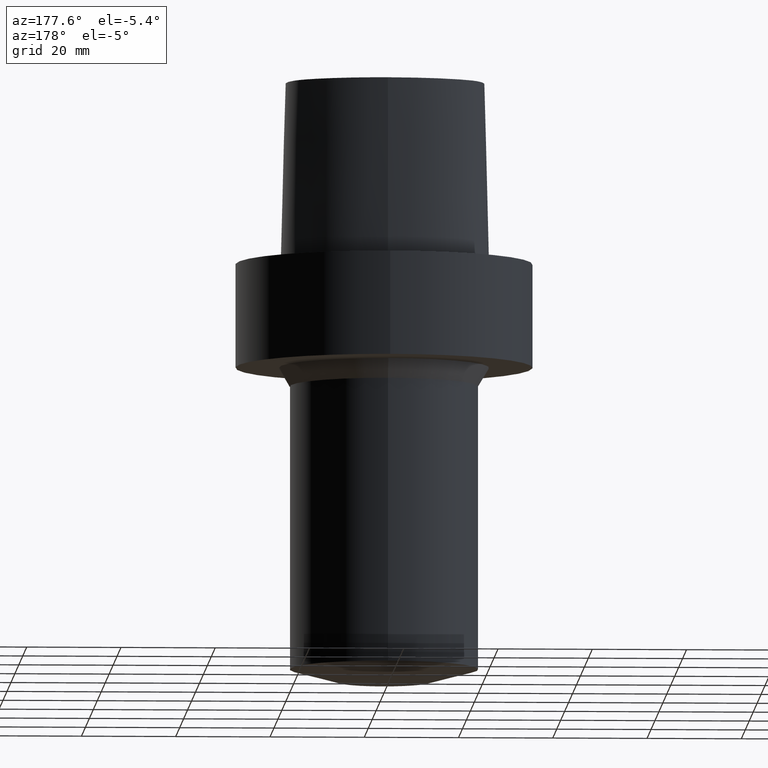
[diagram: clean part render]
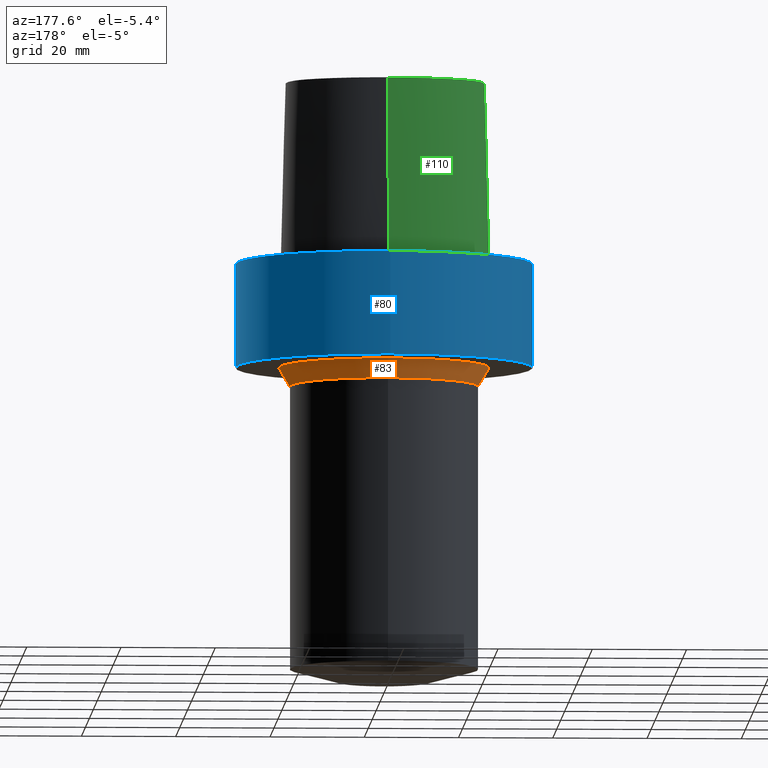
[diagram: same view with three faces highlighted in distinct colors, each labeled with its STEP entity id]
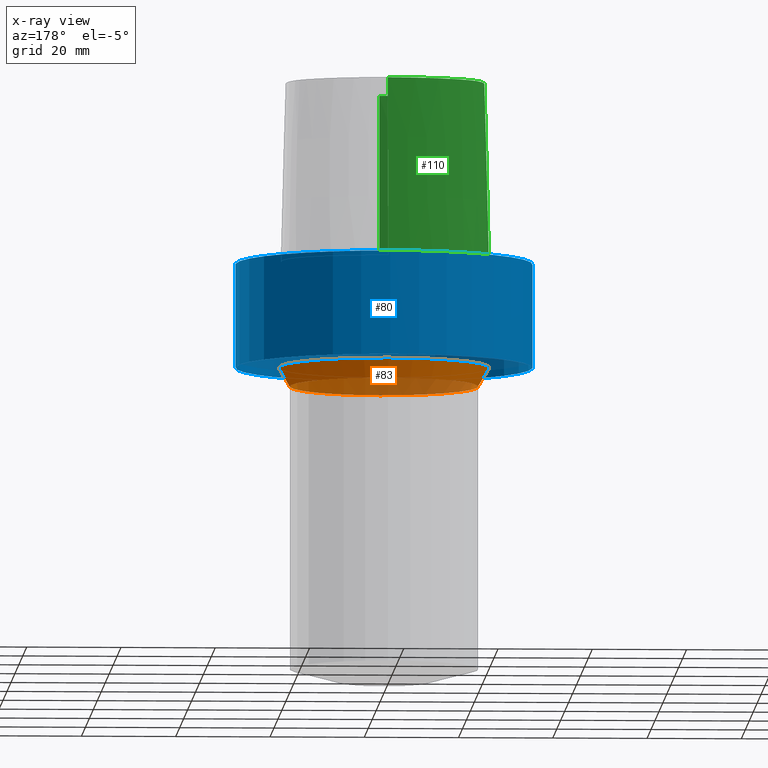
[diagram: x-ray of the same camera — body ghosted, the three highlighted faces saturated]
A machine part, auxiliary view with three faces highlighted in distinct colors.
The next image is the same camera in x-ray (body ghosted, the three faces saturated) — at least one of them is partly hidden behind the body in this view.
Their STEP definitions:

[orange] entity #83 — the highlighted conical surface has half-angle 30 deg.
#83=ADVANCED_FACE('Unnamed[1]',(#179,#180),#181,.T.);
#96=EDGE_CURVE('Unnamed[1]',#195,#195,#196,.T.);
#112=EDGE_CURVE('Unnamed[1]',#219,#219,#220,.T.);
#179=FACE_BOUND('',#375,.T.);
#180=FACE_BOUND('',#376,.T.);
#181=CONICAL_SURFACE('',#377,21.1547005383783,0.523598775598284);
#195=VERTEX_POINT('',#445);
#196=CIRCLE('',#446,22.3094010767605);
#219=VERTEX_POINT('',#546);
#220=CIRCLE('',#547,19.9999999999962);
#375=EDGE_LOOP('',(#592));
#376=EDGE_LOOP('',(#593));
#377=AXIS2_PLACEMENT_3D('',#594,#595,#596);
#445=CARTESIAN_POINT('',(1.34711147906209E-015,22.3094010767605,-22.0));
#446=AXIS2_PLACEMENT_3D('',#607,#608,#609);
#546=CARTESIAN_POINT('',(1.59204083889218E-015,19.9999999999962,-26.0000000000101));
#547=AXIS2_PLACEMENT_3D('',#637,#638,#639);
#592=ORIENTED_EDGE('',*,*,#112,.F.);
#593=ORIENTED_EDGE('',*,*,#96,.T.);
#594=CARTESIAN_POINT('',(1.46957615897713E-015,2.93915231795427E-015,-24.0000000000051));
#595=DIRECTION('',(-6.12323399573677E-017,-1.22464679914735E-016,1.0));
#596=DIRECTION('',(-1.23259516440783E-032,1.0,1.22464679914735E-016));
#607=CARTESIAN_POINT('',(1.34711147906209E-015,2.69422295812418E-015,-22.0));
#608=DIRECTION('',(6.12323399573677E-017,1.22464679914735E-016,-1.0));
#609=DIRECTION('',(-1.23259516440783E-032,1.0,1.22464679914735E-016));
#637=CARTESIAN_POINT('',(1.59204083889218E-015,3.18408167778436E-015,-26.0000000000101));
#638=DIRECTION('',(6.12323399573677E-017,1.22464679914735E-016,-1.0));
#639=DIRECTION('',(-1.23259516440783E-032,1.0,1.22464679914735E-016));

[blue] entity #80 — the highlighted cylindrical surface (bore or boss wall) has radius 31.5 mm, axis along (0, 0, -1).
#69=EDGE_CURVE('Unnamed[1]',#158,#158,#159,.T.);
#75=EDGE_CURVE('Unnamed[1]',#167,#167,#168,.T.);
#80=ADVANCED_FACE('Unnamed[1]',(#174,#175),#176,.T.);
#158=VERTEX_POINT('',#346);
#159=CIRCLE('',#347,31.5);
#167=VERTEX_POINT('',#360);
#168=CIRCLE('',#361,31.5);
#174=FACE_BOUND('',#369,.T.);
#175=FACE_BOUND('',#370,.T.);
#176=CYLINDRICAL_SURFACE('',#371,31.5);
#346=CARTESIAN_POINT('',(-3.88267476788467E-031,31.5,3.85763741731416E-015));
#347=AXIS2_PLACEMENT_3D('',#574,#575,#576);
#360=CARTESIAN_POINT('',(1.34711147906209E-015,31.5,-22.0));
#361=AXIS2_PLACEMENT_3D('',#579,#580,#581);
#369=EDGE_LOOP('',(#586));
#370=EDGE_LOOP('',(#587));
#371=AXIS2_PLACEMENT_3D('',#588,#589,#590);
#574=CARTESIAN_POINT('',(0.0,0.0,0.0));
#575=DIRECTION('',(6.12323399573677E-017,1.22464679914735E-016,-1.0));
#576=DIRECTION('',(-1.23259516440783E-032,1.0,1.22464679914735E-016));
#579=CARTESIAN_POINT('',(1.34711147906209E-015,2.69422295812418E-015,-22.0));
#580=DIRECTION('',(6.12323399573677E-017,1.22464679914735E-016,-1.0));
#581=DIRECTION('',(-1.23259516440783E-032,1.0,1.22464679914735E-016));
#586=ORIENTED_EDGE('',*,*,#75,.F.);
#587=ORIENTED_EDGE('',*,*,#69,.T.);
#588=CARTESIAN_POINT('',(6.73555739531044E-016,1.34711147906209E-015,-11.0));
#589=DIRECTION('',(6.12323399573677E-017,1.22464679914735E-016,-1.0));
#590=DIRECTION('',(-1.23259516440783E-032,1.0,1.22464679914735E-016));

[green] entity #110 — the highlighted face is a freeform B-spline surface patch.
#50=EDGE_CURVE('Unnamed[1]',#130,#131,#132,.T.);
#73=EDGE_CURVE('Unnamed[1]',#150,#164,#165,.T.);
#87=EDGE_CURVE('Unnamed[1]',#131,#164,#185,.T.);
#89=EDGE_CURVE('Unnamed[1]',#150,#130,#187,.T.);
#110=ADVANCED_FACE('Unnamed[1]',(#216),#217,.T.);
#130=VERTEX_POINT('',#229);
#131=VERTEX_POINT('',#230);
#132=LINE('',#231,#232);
#150=VERTEX_POINT('',#321);
#164=VERTEX_POINT('',#355);
#165=LINE('',#356,#357);
#185=B_SPLINE_CURVE_WITH_KNOTS('',3,(#399,#400,#401,#402,#403,#404,#405,#406,#407,#408,#409,#410,#411,#412,#413,#414,#415,#416),.UNSPECIFIED.,.F.,.F.,(4,1,1,1,1,1,1,1,1,2,1,1,1,1,4),(-6.6151339308743,-6.20168806019465,-5.78824218951501,-5.37479631883537,-4.96135044815572,-4.13445870679644,-3.30756696543715,-2.89412109475751,-2.48067522407786,-2.06722935339822,-1.65378348271857,-1.24033761203893,-0.826891741359287,-0.413445870679644,0.0),.UNSPECIFIED.);
#187=B_SPLINE_CURVE_WITH_KNOTS('',3,(#419,#420,#421,#422,#423,#424,#425,#426,#427,#428,#429,#430,#431,#432,#433,#434),.UNSPECIFIED.,.F.,.F.,(4,1,1,1,1,1,1,1,1,1,1,1,1,4),(0.0,0.447924670568964,0.9388024242536,1.50591409090711,2.07314340012323,2.72424957442464,3.2253501842849,3.80982102049476,4.34867996267067,4.85900173381144,5.37972031856977,6.03459825488646,6.61113557741484,6.61513393087395),.UNSPECIFIED.);
#216=FACE_OUTER_BOUND('',#471,.T.);
#217=B_SPLINE_SURFACE_WITH_KNOTS('',3,3,((#472,#473,#474,#475),(#476,#477,#478,#479),(#480,#481,#482,#483),(#484,#485,#486,#487),(#488,#489,#490,#491),(#492,#493,#494,#495),(#496,#497,#498,#499),(#500,#501,#502,#503),(#504,#505,#506,#507),(#508,#509,#510,#511),(#512,#513,#514,#515),(#516,#517,#518,#519),(#520,#521,#522,#523),(#524,#525,#526,#527),(#528,#529,#530,#531),(#532,#533,#534,#535),(#536,#537,#538,#539),(#540,#541,#542,#543)),.UNSPECIFIED.,.F.,.F.,.F.,(4,1,1,1,1,1,1,1,1,2,1,1,1,1,4),(4,4),(-6.6151339308743,-6.20168806019465,-5.78824218951501,-5.37479631883537,-4.96135044815572,-4.13445870679644,-3.30756696543715,-2.89412109475751,-2.48067522407786,-2.06722935339822,-1.65378348271857,-1.24033761203893,-0.826891741359287,-0.413445870679644,0.0),(-3.8,0.0),.UNSPECIFIED.);
#229=CARTESIAN_POINT('',(0.038736923393866,-22.5191997536361,38.0));
#230=CARTESIAN_POINT('',(0.04359356758149,-23.4691235068931,7.78075697532443E-032));
#231=CARTESIAN_POINT('',(0.038736923393866,-22.5191997536361,38.0));
#232=VECTOR('',#549,38.0118715498723);
#321=CARTESIAN_POINT('',(-0.001218547003662,19.7276821925089,38.0));
#355=CARTESIAN_POINT('',(-0.045171994691285,20.6766009553285,1.6755590516169E-031));
#356=CARTESIAN_POINT('',(-0.001218547003662,19.7276821925089,38.0));
#357=VECTOR('',#578,38.0118715498723);
#399=CARTESIAN_POINT('',(0.04359356758149,-23.4691235068931,7.78075697532443E-032));
#400=CARTESIAN_POINT('',(-1.4714994713963,-23.4767895315797,2.46519032881566E-032));
#401=CARTESIAN_POINT('',(-4.43923476371401,-22.821149804767,-4.93038065763132E-032));
#402=CARTESIAN_POINT('',(-8.35043230079961,-20.8000751253325,-9.86076131526265E-032));
#403=CARTESIAN_POINT('',(-11.744900222602,-18.1556117874078,-1.97215226305253E-031));
#404=CARTESIAN_POINT('',(-15.6989602501314,-14.0406306929147,-1.97215226305253E-031));
#405=CARTESIAN_POINT('',(-19.5352875070682,-8.00624990770787,1.97215226305253E-031));
#406=CARTESIAN_POINT('',(-21.7205626190491,-1.16081708945282,0.0));
#407=CARTESIAN_POINT('',(-22.2486616783342,4.54965558738736,0.0));
#408=CARTESIAN_POINT('',(-21.6646421256468,9.00229539124618,0.0));
#409=CARTESIAN_POINT('',(-20.3945635471922,11.7780544971003,0.0));
#410=CARTESIAN_POINT('',(-18.5925528034471,14.1980602922581,0.0));
#411=CARTESIAN_POINT('',(-16.3226584122258,16.1777748720707,0.0));
#412=CARTESIAN_POINT('',(-12.5076407874579,18.2524201541303,9.86076131526265E-032));
#413=CARTESIAN_POINT('',(-8.46776192107786,19.679114377952,9.86076131526265E-032));
#414=CARTESIAN_POINT('',(-4.23043497193604,20.487781597334,1.97215226305253E-031));
#415=CARTESIAN_POINT('',(-1.42313094248379,20.6127745766442,1.10933564796705E-031));
#416=CARTESIAN_POINT('',(-0.045171994691285,20.6766009553285,1.6755590516169E-031));
#419=CARTESIAN_POINT('',(-0.001218547003662,19.7276821925089,38.0));
#420=CARTESIAN_POINT('',(-1.49408492138443,19.6585333605309,38.0));
#421=CARTESIAN_POINT('',(-4.62297391420352,19.513604770166,38.0));
#422=CARTESIAN_POINT('',(-9.56160616752212,18.4291575730197,38.0));
#423=CARTESIAN_POINT('',(-14.5427684976927,16.2697452580488,38.0));
#424=CARTESIAN_POINT('',(-19.4315563551602,12.5302108980807,38.0));
#425=CARTESIAN_POINT('',(-21.306358833612,6.76352894547076,38.0));
#426=CARTESIAN_POINT('',(-21.0724946936277,0.957075236984038,38.0));
#427=CARTESIAN_POINT('',(-19.7876470880144,-4.34628503581652,38.0));
#428=CARTESIAN_POINT('',(-17.5396999600095,-9.33314444653089,38.0));
#429=CARTESIAN_POINT('',(-14.645447733857,-13.7185760345629,38.0));
#430=CARTESIAN_POINT('',(-10.7996726536643,-17.856257282137,38.0));
#431=CARTESIAN_POINT('',(-6.00479510196376,-21.2687382067675,38.0));
#432=CARTESIAN_POINT('',(-1.90747171908525,-22.5250621415864,38.0));
#433=CARTESIAN_POINT('',(0.025424107066464,-22.5192678176378,38.0));
#434=CARTESIAN_POINT('',(0.038736923394311,-22.519199753636,38.0));
#471=EDGE_LOOP('',(#633,#634,#635,#636));
#472=CARTESIAN_POINT('',(0.038736923393866,-22.5191997536361,38.0));
#473=CARTESIAN_POINT('',(0.04035580478973,-22.8358410047159,25.3333333333066));
#474=CARTESIAN_POINT('',(0.041974686185626,-23.1524822558133,12.6666666666934));
#475=CARTESIAN_POINT('',(0.04359356758149,-23.4691235068931,7.78075697532443E-032));
#476=CARTESIAN_POINT('',(-1.33786123484754,-22.5261650259856,38.0));
#477=CARTESIAN_POINT('',(-1.38240731367927,-22.8430399310626,25.3333333333066));
#478=CARTESIAN_POINT('',(-1.42695339249092,-23.1599147815484,12.6666666666934));
#479=CARTESIAN_POINT('',(-1.4714994713963,-23.4767895315797,2.46519032881566E-032));
#480=CARTESIAN_POINT('',(-4.08909358431842,-21.9268839879558,38.0));
#481=CARTESIAN_POINT('',(-4.20580731135515,-22.2249725500078,25.3333333333066));
#482=CARTESIAN_POINT('',(-4.32252104640446,-22.5230611651922,12.6666666666934));
#483=CARTESIAN_POINT('',(-4.43923476371401,-22.821149804767,-4.93038065763132E-032));
#484=CARTESIAN_POINT('',(-7.8333083619947,-19.9973514861616,38.0));
#485=CARTESIAN_POINT('',(-8.00568301809614,-20.2649260859405,25.3333333333066));
#486=CARTESIAN_POINT('',(-8.1780576640789,-20.532500564315,12.6666666666934));
#487=CARTESIAN_POINT('',(-8.35043230079961,-20.8000751253325,-9.86076131526265E-032));
#488=CARTESIAN_POINT('',(-11.1035071147626,-17.450554957873,38.0));
#489=CARTESIAN_POINT('',(-11.3173048160562,-17.6855739222454,25.3333333333066));
#490=CARTESIAN_POINT('',(-11.5311025116181,-17.9205928617968,12.6666666666934));
#491=CARTESIAN_POINT('',(-11.744900222602,-18.1556117874078,-1.97215226305253E-031));
#492=CARTESIAN_POINT('',(-14.9379535189057,-13.461132049697,38.0));
#493=CARTESIAN_POINT('',(-15.191622410671,-13.6542981711372,25.3333333333066));
#494=CARTESIAN_POINT('',(-15.4452913389853,-13.8474645327131,12.6666666666934));
#495=CARTESIAN_POINT('',(-15.6989602501314,-14.0406306929147,-1.97215226305253E-031));
#496=CARTESIAN_POINT('',(-18.6681263017223,-7.59391757463204,38.0));
#497=CARTESIAN_POINT('',(-18.9571800800711,-7.73136168081928,25.3333333333066));
#498=CARTESIAN_POINT('',(-19.2462337287194,-7.86880572399774,12.6666666666934));
#499=CARTESIAN_POINT('',(-19.5352875070682,-8.00624990770787,1.97215226305253E-031));
#500=CARTESIAN_POINT('',(-20.7857899858339,-0.952862819790525,38.0));
#501=CARTESIAN_POINT('',(-21.0973808305434,-1.02218087467418,25.3333333333066));
#502=CARTESIAN_POINT('',(-21.408971677436,-1.09149899580772,12.6666666666934));
#503=CARTESIAN_POINT('',(-21.7205626190491,-1.16081708945282,0.0));
#504=CARTESIAN_POINT('',(-21.2911760556836,4.5469215763113,38.0));
#505=CARTESIAN_POINT('',(-21.610337904926,4.54783292082248,25.3333333333066));
#506=CARTESIAN_POINT('',(-21.9294998290918,4.54874426225691,12.6666666666934));
#507=CARTESIAN_POINT('',(-22.2486616783342,4.54965558738736,0.0));
#508=CARTESIAN_POINT('',(-20.7345309521958,8.74909381391006,38.0));
#509=CARTESIAN_POINT('',(-21.0445680426217,8.83349432450556,25.3333333333066));
#510=CARTESIAN_POINT('',(-21.3546050933631,8.91789488065068,12.6666666666934));
#511=CARTESIAN_POINT('',(-21.6646421256468,9.00229539124618,0.0));
#512=CARTESIAN_POINT('',(-19.5531512296439,11.3174844040833,38.0));
#513=CARTESIAN_POINT('',(-19.8336219699984,11.4710077674213,25.3333333333066));
#514=CARTESIAN_POINT('',(-20.1140927680763,11.6245311337623,12.6666666666934));
#515=CARTESIAN_POINT('',(-20.3945635471922,11.7780544971003,0.0));
#516=CARTESIAN_POINT('',(-17.9100913688793,13.524027510437,38.0));
#517=CARTESIAN_POINT('',(-18.1375785458768,13.7487051053655,25.3333333333066));
#518=CARTESIAN_POINT('',(-18.365065665211,13.9733826973296,12.6666666666934));
#519=CARTESIAN_POINT('',(-18.5925528034471,14.1980602922581,0.0));
#520=CARTESIAN_POINT('',(-15.7996349656398,15.3762170634413,38.0));
#521=CARTESIAN_POINT('',(-15.9739761051783,15.6434029846179,25.3333333333066));
#522=CARTESIAN_POINT('',(-16.1483172726872,15.9105889315134,12.6666666666934));
#523=CARTESIAN_POINT('',(-16.3226584122258,16.1777748720707,0.0));
#524=CARTESIAN_POINT('',(-12.1175640002064,17.3825162484012,38.0));
#525=CARTESIAN_POINT('',(-12.2475895903055,17.6724842099619,25.3333333333066));
#526=CARTESIAN_POINT('',(-12.3776152070492,17.9624521925696,12.6666666666934));
#527=CARTESIAN_POINT('',(-12.5076407874579,18.2524201541303,9.86076131526265E-032));
#528=CARTESIAN_POINT('',(-8.21761151654222,18.7588585989994,38.0));
#529=CARTESIAN_POINT('',(-8.30099497910627,19.0656105427881,25.3333333333066));
#530=CARTESIAN_POINT('',(-8.38437843913309,19.3723624535439,12.6666666666934));
#531=CARTESIAN_POINT('',(-8.46776192107786,19.679114377952,9.86076131526265E-032));
#532=CARTESIAN_POINT('',(-4.13466093881225,19.5396850837055,38.0));
#533=CARTESIAN_POINT('',(-4.16658562115465,19.8557172636973,25.3333333333066));
#534=CARTESIAN_POINT('',(-4.19851029939059,20.1717494367229,12.6666666666934));
#535=CARTESIAN_POINT('',(-4.23043497193604,20.487781597334,1.97215226305253E-031));
#536=CARTESIAN_POINT('',(-1.37917220403684,19.6638560588908,38.0));
#537=CARTESIAN_POINT('',(-1.39382511685176,19.98016223565,25.3333333333066));
#538=CARTESIAN_POINT('',(-1.40847802945569,20.296468399885,12.6666666666934));
#539=CARTESIAN_POINT('',(-1.42313094248379,20.6127745766442,1.10933564796705E-031));
#540=CARTESIAN_POINT('',(-0.001218547003662,19.7276821925089,38.0));
#541=CARTESIAN_POINT('',(-0.015869696232855,20.043988446791,25.3333333333066));
#542=CARTESIAN_POINT('',(-0.030520845462092,20.3602947010464,12.6666666666934));
#543=CARTESIAN_POINT('',(-0.045171994691285,20.6766009553285,1.6755590516169E-031));
#549=DIRECTION('',(0.000127766510556,-0.024990186342461,-0.999687688361864));
#578=DIRECTION('',(-0.001156308434589,0.02496374748543,-0.999687688361864));
#633=ORIENTED_EDGE('',*,*,#87,.F.);
#634=ORIENTED_EDGE('',*,*,#50,.F.);
#635=ORIENTED_EDGE('',*,*,#89,.F.);
#636=ORIENTED_EDGE('',*,*,#73,.T.);